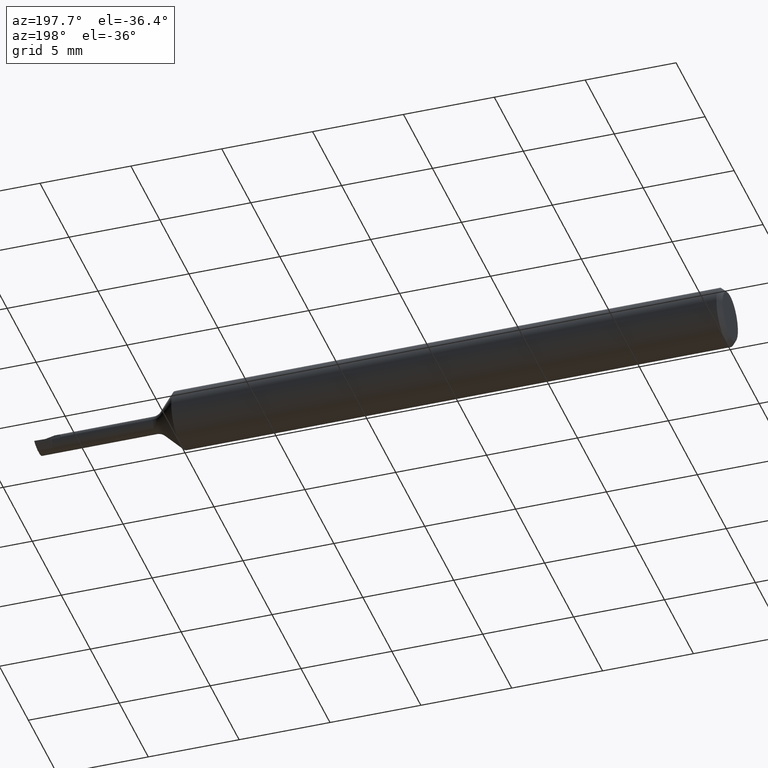
[diagram: clean part render]
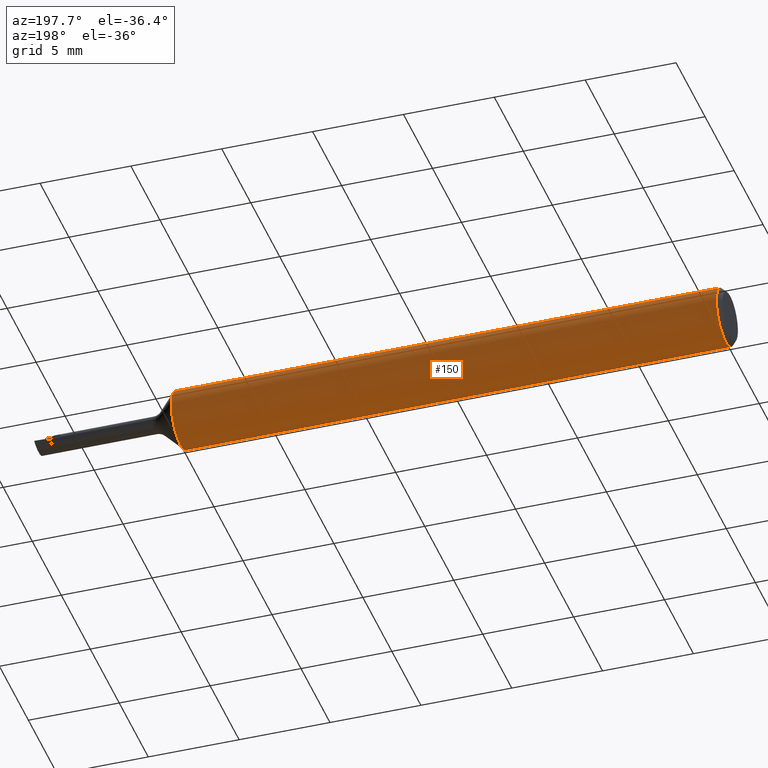
[diagram: same view with one face highlighted and labeled with its STEP entity id]
A machine part, auxiliary view. The second image highlights one B-rep face of the part: STEP entity #150.
In plain terms, the highlighted cylindrical surface (edge-blend (fillet) strip) has radius 1.5837 mm, axis along (-1, -0, -0).
Its self-contained STEP definition (entity closure, byte-faithful):
#3 = VECTOR ( 'NONE', #415, 39.37007874015748143 ) ;
#4 = AXIS2_PLACEMENT_3D ( 'NONE', #378, #527, #484 ) ;
#32 = AXIS2_PLACEMENT_3D ( 'NONE', #274, #622, #468 ) ;
#36 = AXIS2_PLACEMENT_3D ( 'NONE', #128, #83, #337 ) ;
#43 = ORIENTED_EDGE ( 'NONE', *, *, #405, .T. ) ;
#54 = CIRCLE ( 'NONE', #553, 0.06235000000000000264 ) ;
#61 = ORIENTED_EDGE ( 'NONE', *, *, #408, .T. ) ;
#83 = DIRECTION ( 'NONE',  ( -1.000000000000000000, -0.000000000000000000, -0.000000000000000000 ) ) ;
#107 = CYLINDRICAL_SURFACE ( 'NONE', #221, 0.06235000000000000264 ) ;
#124 = DIRECTION ( 'NONE',  ( 0.000000000000000000, 0.000000000000000000, -1.000000000000000000 ) ) ;
#128 = CARTESIAN_POINT ( 'NONE',  ( 1.191150000000000153, 0.000000000000000000, 0.000000000000000000 ) ) ;
#133 = DIRECTION ( 'NONE',  ( 1.000000000000000000, 0.000000000000000000, 0.000000000000000000 ) ) ;
#143 = EDGE_CURVE ( 'NONE', #367, #352, #354, .T. ) ;
#150 = ADVANCED_FACE ( 'NONE', ( #257 ), #107, .T. ) ;
#166 = CIRCLE ( 'NONE', #4, 0.06235000000000000264 ) ;
#184 = ORIENTED_EDGE ( 'NONE', *, *, #626, .T. ) ;
#221 = AXIS2_PLACEMENT_3D ( 'NONE', #502, #606, #401 ) ;
#233 = ORIENTED_EDGE ( 'NONE', *, *, #143, .T. ) ;
#239 = CARTESIAN_POINT ( 'NONE',  ( 0.01000000000000840841, -0.03386738844395137393, 0.05235000000000001458 ) ) ;
#257 = FACE_OUTER_BOUND ( 'NONE', #410, .T. ) ;
#274 = CARTESIAN_POINT ( 'NONE',  ( 0.009999999999999887451, 0.000000000000000000, 0.000000000000000000 ) ) ;
#276 = VERTEX_POINT ( 'NONE', #511 ) ;
#283 = CARTESIAN_POINT ( 'NONE',  ( 0.000000000000000000, -0.03386738844375220686, 0.05235000000000000070 ) ) ;
#322 = ORIENTED_EDGE ( 'NONE', *, *, #368, .T. ) ;
#325 = CIRCLE ( 'NONE', #36, 0.06235000000000000264 ) ;
#332 = LINE ( 'NONE', #283, #399 ) ;
#337 = DIRECTION ( 'NONE',  ( 0.000000000000000000, 0.000000000000000000, 1.000000000000000000 ) ) ;
#352 = VERTEX_POINT ( 'NONE', #420 ) ;
#354 = LINE ( 'NONE', #557, #3 ) ;
#367 = VERTEX_POINT ( 'NONE', #573 ) ;
#368 = EDGE_CURVE ( 'NONE', #462, #577, #54, .T. ) ;
#378 = CARTESIAN_POINT ( 'NONE',  ( 1.191150000000000153, 0.000000000000000000, 0.000000000000000000 ) ) ;
#386 = CARTESIAN_POINT ( 'NONE',  ( 1.191150000000000153, 7.635672792683746671E-18, -0.06235000000000000264 ) ) ;
#399 = VECTOR ( 'NONE', #479, 39.37007874015748143 ) ;
#401 = DIRECTION ( 'NONE',  ( 0.000000000000000000, 0.000000000000000000, 1.000000000000000000 ) ) ;
#405 = EDGE_CURVE ( 'NONE', #352, #634, #325, .T. ) ;
#407 = ORIENTED_EDGE ( 'NONE', *, *, #596, .T. ) ;
#408 = EDGE_CURVE ( 'NONE', #276, #462, #332, .T. ) ;
#410 = EDGE_LOOP ( 'NONE', ( #43, #184, #61, #322, #407, #233 ) ) ;
#415 = DIRECTION ( 'NONE',  ( 1.000000000000000000, 0.000000000000000000, 0.000000000000000000 ) ) ;
#420 = CARTESIAN_POINT ( 'NONE',  ( 1.191150000000000153, 0.03386738844375220686, 0.05235000000000000070 ) ) ;
#445 = CIRCLE ( 'NONE', #32, 0.06235000000000000264 ) ;
#460 = CARTESIAN_POINT ( 'NONE',  ( 0.009999999999999887451, 0.000000000000000000, -0.06235000000000000264 ) ) ;
#462 = VERTEX_POINT ( 'NONE', #239 ) ;
#468 = DIRECTION ( 'NONE',  ( 0.000000000000000000, 0.000000000000000000, -1.000000000000000000 ) ) ;
#479 = DIRECTION ( 'NONE',  ( -1.000000000000000000, -0.000000000000000000, -0.000000000000000000 ) ) ;
#484 = DIRECTION ( 'NONE',  ( 0.000000000000000000, 0.000000000000000000, 1.000000000000000000 ) ) ;
#502 = CARTESIAN_POINT ( 'NONE',  ( 0.000000000000000000, 0.000000000000000000, 0.000000000000000000 ) ) ;
#511 = CARTESIAN_POINT ( 'NONE',  ( 1.191150000000000153, -0.03386738844375220686, 0.05235000000000000070 ) ) ;
#527 = DIRECTION ( 'NONE',  ( -1.000000000000000000, -0.000000000000000000, -0.000000000000000000 ) ) ;
#553 = AXIS2_PLACEMENT_3D ( 'NONE', #576, #133, #124 ) ;
#557 = CARTESIAN_POINT ( 'NONE',  ( 0.000000000000000000, 0.03386738844375220686, 0.05235000000000000070 ) ) ;
#573 = CARTESIAN_POINT ( 'NONE',  ( 0.009999999999999890921, 0.03386738844375217911, 0.05235000000000001458 ) ) ;
#576 = CARTESIAN_POINT ( 'NONE',  ( 0.009999999999999887451, 0.000000000000000000, 0.000000000000000000 ) ) ;
#577 = VERTEX_POINT ( 'NONE', #460 ) ;
#596 = EDGE_CURVE ( 'NONE', #577, #367, #445, .T. ) ;
#606 = DIRECTION ( 'NONE',  ( -1.000000000000000000, -0.000000000000000000, -0.000000000000000000 ) ) ;
#622 = DIRECTION ( 'NONE',  ( 1.000000000000000000, 0.000000000000000000, 0.000000000000000000 ) ) ;
#626 = EDGE_CURVE ( 'NONE', #634, #276, #166, .T. ) ;
#634 = VERTEX_POINT ( 'NONE', #386 ) ;